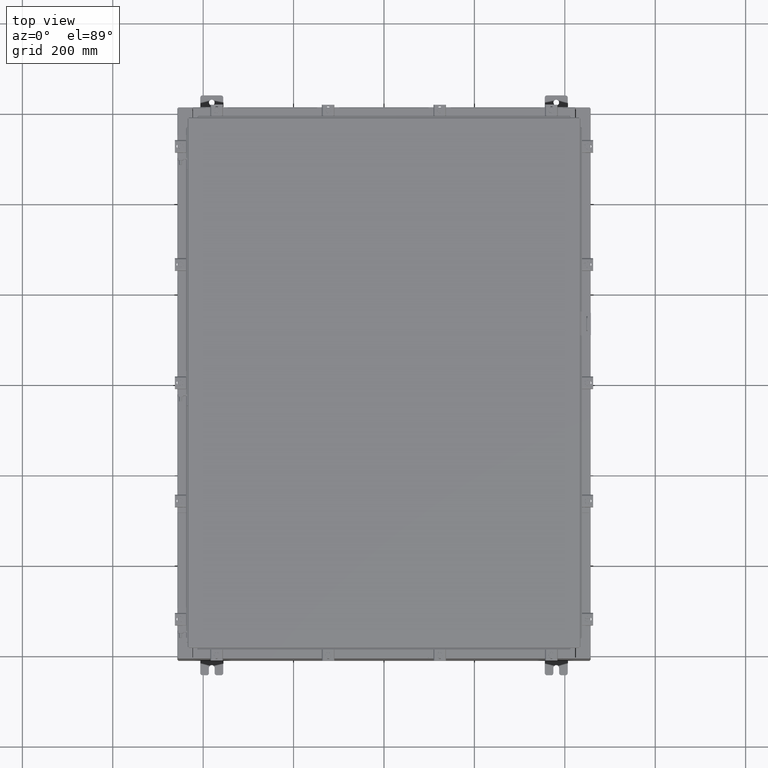
[diagram: clean part render]
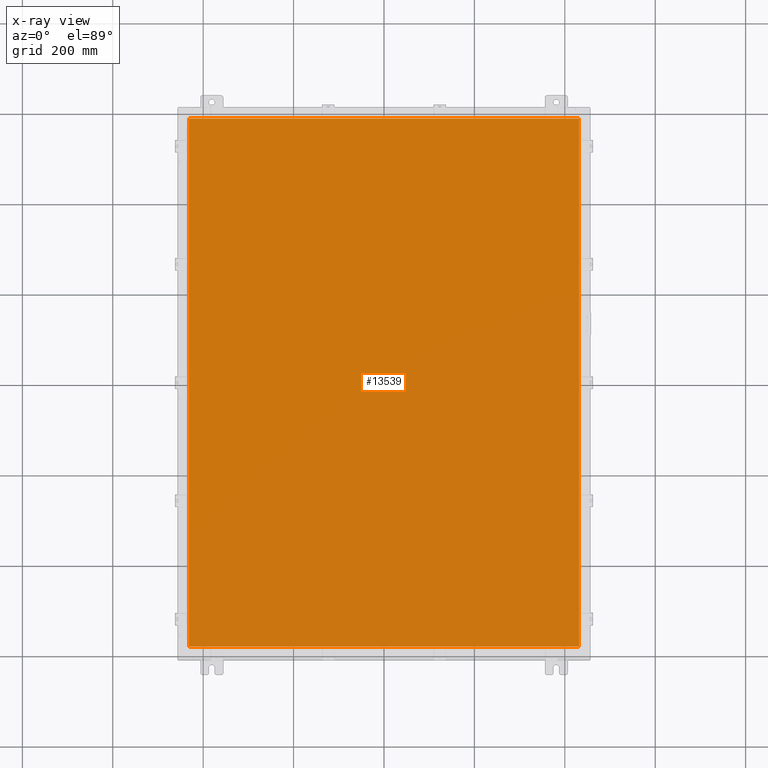
[diagram: x-ray — body ghosted, one internal face saturated and labeled with its STEP entity id]
A machine part, top view, then the same camera in x-ray: the body is ghosted and one INTERNAL B-rep face — a face not visible from any outside direction — is saturated and labeled: STEP entity #13539.
In plain terms, the highlighted planar face has unit normal (0, 0, -1).
Its self-contained STEP definition (entity closure, byte-faithful):
#679 = VERTEX_POINT ( 'NONE', #24630 ) ;
#1016 = LINE ( 'NONE', #6014, #24754 ) ;
#1337 = ORIENTED_EDGE ( 'NONE', *, *, #22127, .F. ) ;
#1500 = CARTESIAN_POINT ( 'NONE',  ( -16.99029999999999800, -23.00630000000000000, -0.07469999999999797600 ) ) ;
#1655 = DIRECTION ( 'NONE',  ( -1.000000000000000000, 0.0000000000000000000, -0.0000000000000000000 ) ) ;
#2854 = CARTESIAN_POINT ( 'NONE',  ( -16.99029999999999800, 23.00629999999999600, -0.07470000000000000300 ) ) ;
#3098 = EDGE_CURVE ( 'NONE', #679, #23105, #15416, .T. ) ;
#3668 = DIRECTION ( 'NONE',  ( 0.0000000000000000000, 0.0000000000000000000, -1.000000000000000000 ) ) ;
#3908 = VECTOR ( 'NONE', #17085, 39.37007874015748100 ) ;
#4017 = CARTESIAN_POINT ( 'NONE',  ( 16.99030000000000100, 23.00629999999999600, -0.07470000000000000300 ) ) ;
#5034 = VECTOR ( 'NONE', #20448, 39.37007874015748100 ) ;
#6014 = CARTESIAN_POINT ( 'NONE',  ( 16.99029999999999800, 23.00630000000000000, -0.07469999999999804600 ) ) ;
#6637 = CARTESIAN_POINT ( 'NONE',  ( -16.99029999999999800, 23.00629999999999600, -0.07470000000000019700 ) ) ;
#8231 = EDGE_CURVE ( 'NONE', #14642, #10280, #26283, .T. ) ;
#8475 = DIRECTION ( 'NONE',  ( 0.0000000000000000000, 1.000000000000000000, 0.0000000000000000000 ) ) ;
#9812 = VECTOR ( 'NONE', #8475, 39.37007874015748100 ) ;
#10280 = VERTEX_POINT ( 'NONE', #22516 ) ;
#10583 = CARTESIAN_POINT ( 'NONE',  ( 16.99030000000000100, -23.00629999999999600, -0.07470000000000129300 ) ) ;
#10951 = ORIENTED_EDGE ( 'NONE', *, *, #8231, .F. ) ;
#13539 = ADVANCED_FACE ( 'NONE', ( #13591 ), #26865, .T. ) ;
#13591 = FACE_OUTER_BOUND ( 'NONE', #20409, .T. ) ;
#14447 = AXIS2_PLACEMENT_3D ( 'NONE', #24755, #3668, #1655 ) ;
#14642 = VERTEX_POINT ( 'NONE', #2854 ) ;
#15416 = LINE ( 'NONE', #10583, #9812 ) ;
#17085 = DIRECTION ( 'NONE',  ( 0.0000000000000000000, -1.000000000000000000, 0.0000000000000000000 ) ) ;
#19781 = ORIENTED_EDGE ( 'NONE', *, *, #3098, .F. ) ;
#20409 = EDGE_LOOP ( 'NONE', ( #19781, #1337, #10951, #22724 ) ) ;
#20448 = DIRECTION ( 'NONE',  ( 1.000000000000000000, -0.0000000000000000000, -0.0000000000000000000 ) ) ;
#20681 = DIRECTION ( 'NONE',  ( -1.000000000000000000, -0.0000000000000000000, -0.0000000000000000000 ) ) ;
#22127 = EDGE_CURVE ( 'NONE', #10280, #679, #26785, .T. ) ;
#22516 = CARTESIAN_POINT ( 'NONE',  ( -16.99029999999999800, -23.00629999999999600, -0.07470000000000000300 ) ) ;
#22724 = ORIENTED_EDGE ( 'NONE', *, *, #24260, .F. ) ;
#23105 = VERTEX_POINT ( 'NONE', #4017 ) ;
#24260 = EDGE_CURVE ( 'NONE', #23105, #14642, #1016, .T. ) ;
#24630 = CARTESIAN_POINT ( 'NONE',  ( 16.99030000000000100, -23.00630000000000000, -0.07470000000000000300 ) ) ;
#24754 = VECTOR ( 'NONE', #20681, 39.37007874015748100 ) ;
#24755 = CARTESIAN_POINT ( 'NONE',  ( 0.0000000000000000000, 0.0000000000000000000, -0.07470000000000000300 ) ) ;
#26283 = LINE ( 'NONE', #6637, #3908 ) ;
#26785 = LINE ( 'NONE', #1500, #5034 ) ;
#26865 = PLANE ( 'NONE',  #14447 ) ;